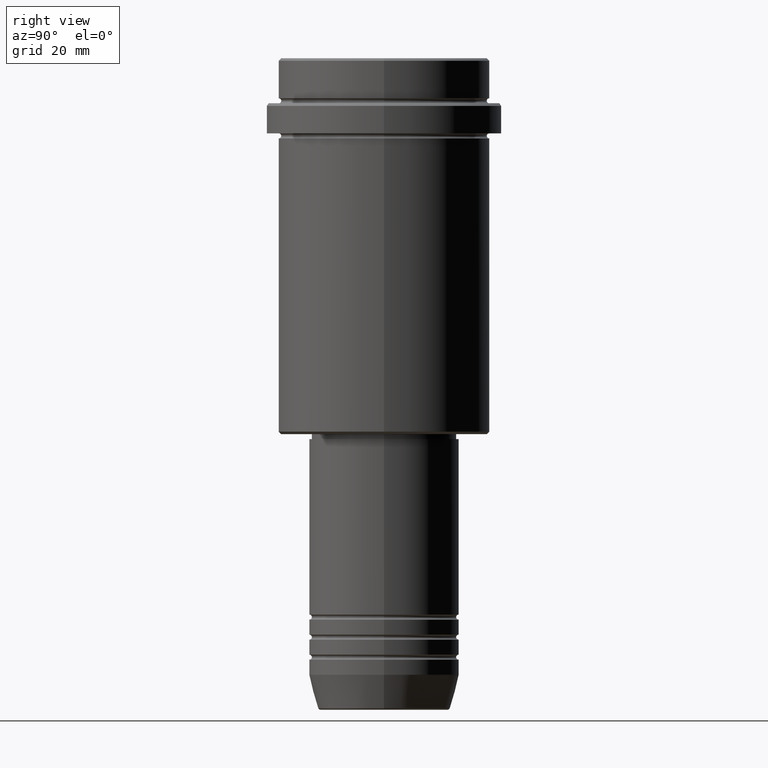
[diagram: clean part render]
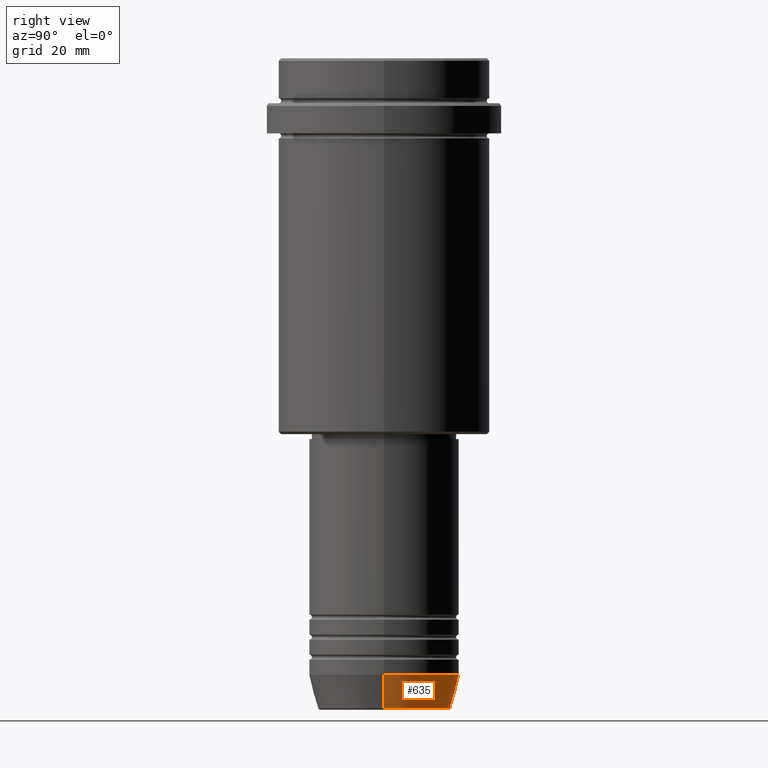
[diagram: same view with one face highlighted and labeled with its STEP entity id]
A machine part, right view. The second image highlights one B-rep face of the part: STEP entity #635.
In plain terms, the highlighted conical surface has half-angle 15 deg.
Its self-contained STEP definition (entity closure, byte-faithful):
#73 = EDGE_CURVE ( 'NONE', #480, #449, #1407, .T. ) ;
#92 = DIRECTION ( 'NONE',  ( 1.000000000000000000, 0.000000000000000000, 0.000000000000000000 ) ) ;
#112 = CIRCLE ( 'NONE', #785, 15.00000000000000000 ) ;
#156 = FACE_OUTER_BOUND ( 'NONE', #435, .T. ) ;
#264 = DIRECTION ( 'NONE',  ( -0.000000000000000000, -0.000000000000000000, 1.000000000000000000 ) ) ;
#289 = CARTESIAN_POINT ( 'NONE',  ( -13.22365507213719305, 1.728200442216588386E-15, -129.6294095225512422 ) ) ;
#311 = DIRECTION ( 'NONE',  ( -0.000000000000000000, -0.000000000000000000, 1.000000000000000000 ) ) ;
#353 = CARTESIAN_POINT ( 'NONE',  ( -15.00000000000000000, 1.836970198721029589E-15, -123.0000000000000000 ) ) ;
#375 = LINE ( 'NONE', #490, #566 ) ;
#401 = DIRECTION ( 'NONE',  ( -0.2588190451025213501, 3.169619151431772337E-17, 0.9659258262890680902 ) ) ;
#428 = AXIS2_PLACEMENT_3D ( 'NONE', #1017, #264, #813 ) ;
#435 = EDGE_LOOP ( 'NONE', ( #1043, #1345, #1031, #1169 ) ) ;
#449 = VERTEX_POINT ( 'NONE', #289 ) ;
#480 = VERTEX_POINT ( 'NONE', #1172 ) ;
#490 = CARTESIAN_POINT ( 'NONE',  ( 15.00000000000000000, 0.000000000000000000, -123.0000000000000000 ) ) ;
#499 = VECTOR ( 'NONE', #401, 1000.000000000000000 ) ;
#535 = CARTESIAN_POINT ( 'NONE',  ( 0.000000000000000000, 0.000000000000000000, -129.6294095225512422 ) ) ;
#566 = VECTOR ( 'NONE', #932, 1000.000000000000000 ) ;
#635 = ADVANCED_FACE ( 'NONE', ( #156 ), #1233, .T. ) ;
#718 = VERTEX_POINT ( 'NONE', #1091 ) ;
#741 = EDGE_CURVE ( 'NONE', #480, #718, #375, .T. ) ;
#785 = AXIS2_PLACEMENT_3D ( 'NONE', #1295, #956, #859 ) ;
#807 = AXIS2_PLACEMENT_3D ( 'NONE', #535, #311, #92 ) ;
#813 = DIRECTION ( 'NONE',  ( 1.000000000000000000, 0.000000000000000000, 0.000000000000000000 ) ) ;
#859 = DIRECTION ( 'NONE',  ( 1.000000000000000000, 0.000000000000000000, 0.000000000000000000 ) ) ;
#932 = DIRECTION ( 'NONE',  ( 0.2588190451025213501, 0.000000000000000000, 0.9659258262890680902 ) ) ;
#952 = LINE ( 'NONE', #1379, #499 ) ;
#956 = DIRECTION ( 'NONE',  ( -0.000000000000000000, -0.000000000000000000, 1.000000000000000000 ) ) ;
#1017 = CARTESIAN_POINT ( 'NONE',  ( 0.000000000000000000, 0.000000000000000000, -123.0000000000000000 ) ) ;
#1031 = ORIENTED_EDGE ( 'NONE', *, *, #1349, .F. ) ;
#1043 = ORIENTED_EDGE ( 'NONE', *, *, #73, .T. ) ;
#1081 = VERTEX_POINT ( 'NONE', #353 ) ;
#1091 = CARTESIAN_POINT ( 'NONE',  ( 15.00000000000000000, 0.000000000000000000, -123.0000000000000000 ) ) ;
#1169 = ORIENTED_EDGE ( 'NONE', *, *, #741, .F. ) ;
#1172 = CARTESIAN_POINT ( 'NONE',  ( 13.22365507213719305, 0.000000000000000000, -129.6294095225512422 ) ) ;
#1233 = CONICAL_SURFACE ( 'NONE', #428, 15.00000000000000000, 0.2617993877991500740 ) ;
#1284 = EDGE_CURVE ( 'NONE', #449, #1081, #952, .T. ) ;
#1295 = CARTESIAN_POINT ( 'NONE',  ( 0.000000000000000000, 0.000000000000000000, -123.0000000000000000 ) ) ;
#1345 = ORIENTED_EDGE ( 'NONE', *, *, #1284, .T. ) ;
#1349 = EDGE_CURVE ( 'NONE', #718, #1081, #112, .T. ) ;
#1379 = CARTESIAN_POINT ( 'NONE',  ( -15.00000000000000000, 1.836970198721029589E-15, -123.0000000000000000 ) ) ;
#1407 = CIRCLE ( 'NONE', #807, 13.22365507213719305 ) ;